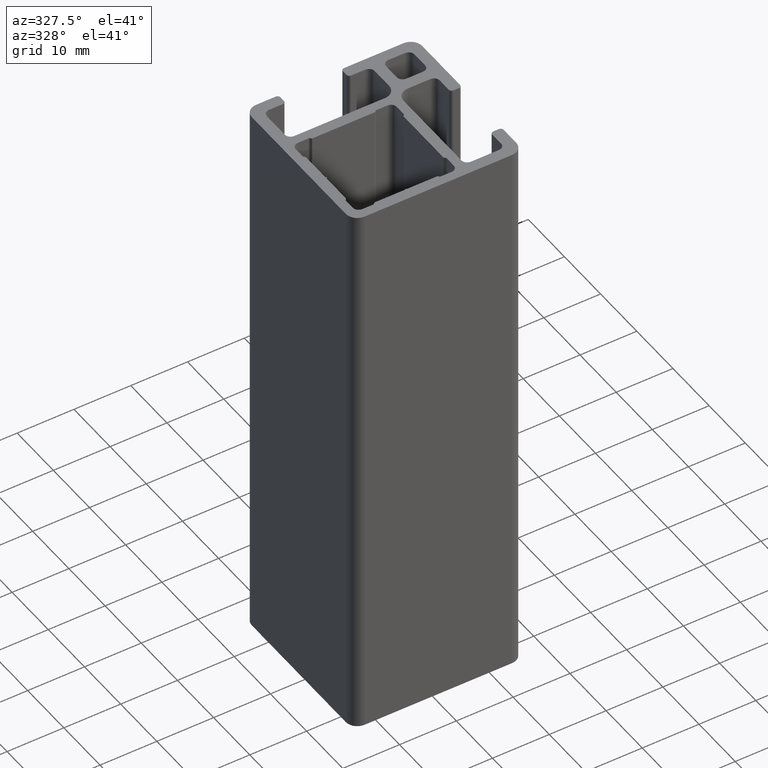
[diagram: clean part render]
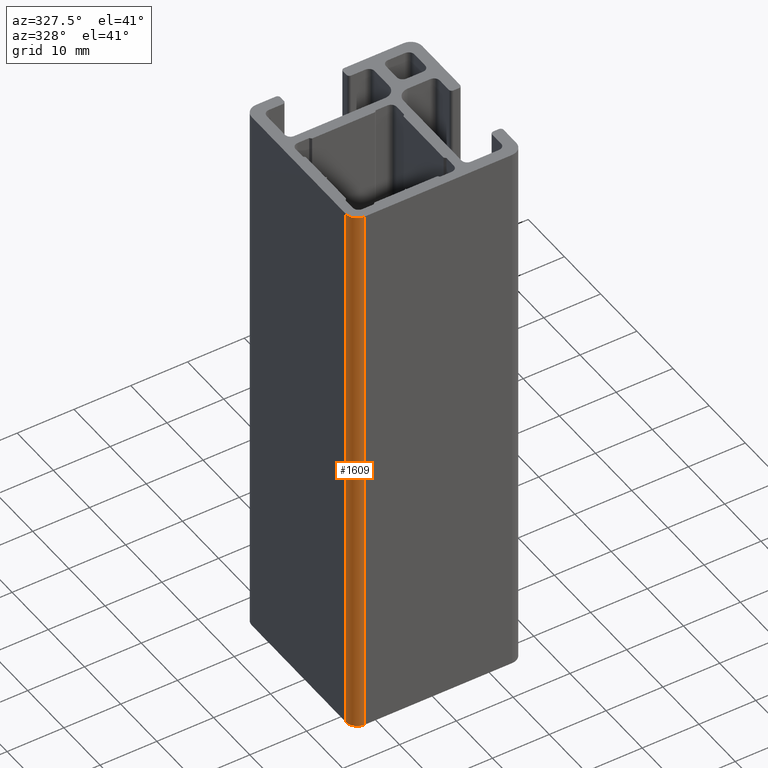
[diagram: same view with one face highlighted and labeled with its STEP entity id]
A machine part, auxiliary view. The second image highlights one B-rep face of the part: STEP entity #1609.
In plain terms, the highlighted cylindrical surface (edge-blend (fillet) strip) has radius 2 mm, axis along (0, 0, 1).
Its self-contained STEP definition (entity closure, byte-faithful):
#147=FACE_OUTER_BOUND('',#229,.T.);
#229=EDGE_LOOP('',(#1415,#1416,#1417,#1418));
#408=LINE('',#2661,#586);
#410=LINE('',#2665,#588);
#586=VECTOR('',#2186,100.);
#588=VECTOR('',#2190,100.);
#641=CIRCLE('',#1736,2.00000000847673);
#645=CIRCLE('',#1746,2.00000000847673);
#793=VERTEX_POINT('',#2636);
#794=VERTEX_POINT('',#2638);
#800=VERTEX_POINT('',#2660);
#801=VERTEX_POINT('',#2664);
#1019=EDGE_CURVE('',#794,#793,#641,.T.);
#1030=EDGE_CURVE('',#800,#794,#408,.T.);
#1032=EDGE_CURVE('',#801,#793,#410,.T.);
#1033=EDGE_CURVE('',#800,#801,#645,.T.);
#1415=ORIENTED_EDGE('',*,*,#1019,.T.);
#1416=ORIENTED_EDGE('',*,*,#1032,.F.);
#1417=ORIENTED_EDGE('',*,*,#1033,.F.);
#1418=ORIENTED_EDGE('',*,*,#1030,.T.);
#1531=CYLINDRICAL_SURFACE('',#1745,2.00000000847673);
#1609=ADVANCED_FACE('',(#147),#1531,.T.);
#1736=AXIS2_PLACEMENT_3D('',#2639,#2161,#2162);
#1745=AXIS2_PLACEMENT_3D('',#2663,#2188,#2189);
#1746=AXIS2_PLACEMENT_3D('',#2666,#2191,#2192);
#2161=DIRECTION('center_axis',(0.,0.,-1.));
#2162=DIRECTION('ref_axis',(1.,0.,0.));
#2186=DIRECTION('',(0.,0.,1.));
#2188=DIRECTION('center_axis',(0.,0.,1.));
#2189=DIRECTION('ref_axis',(1.,0.,0.));
#2190=DIRECTION('',(0.,0.,1.));
#2191=DIRECTION('center_axis',(0.,0.,-1.));
#2192=DIRECTION('ref_axis',(1.,0.,0.));
#2636=CARTESIAN_POINT('',(-15.,-12.9999999870676,100.));
#2638=CARTESIAN_POINT('',(-12.9999999915233,-14.9999999955443,100.));
#2639=CARTESIAN_POINT('Origin',(-12.9999999915233,-12.9999999870676,100.));
#2660=CARTESIAN_POINT('',(-12.9999999915233,-14.9999999955443,0.));
#2661=CARTESIAN_POINT('',(-12.9999999915233,-14.9999999955443,0.));
#2663=CARTESIAN_POINT('Origin',(-12.9999999915233,-12.9999999870676,0.));
#2664=CARTESIAN_POINT('',(-15.,-12.9999999870676,0.));
#2665=CARTESIAN_POINT('',(-15.,-12.9999999870676,0.));
#2666=CARTESIAN_POINT('Origin',(-12.9999999915233,-12.9999999870676,0.));